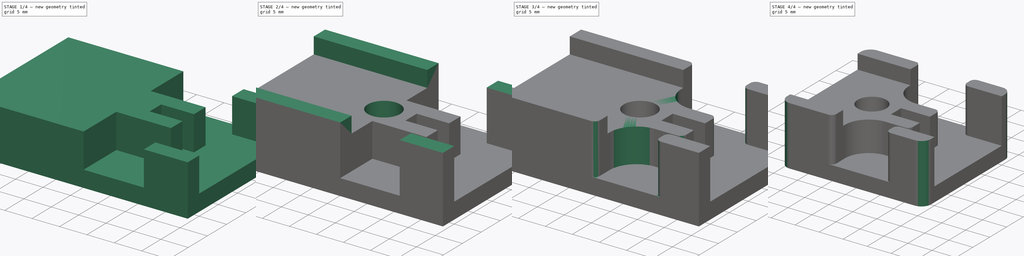
[diagram: build sequence overview — one tinted view per stage of 4, left to right]
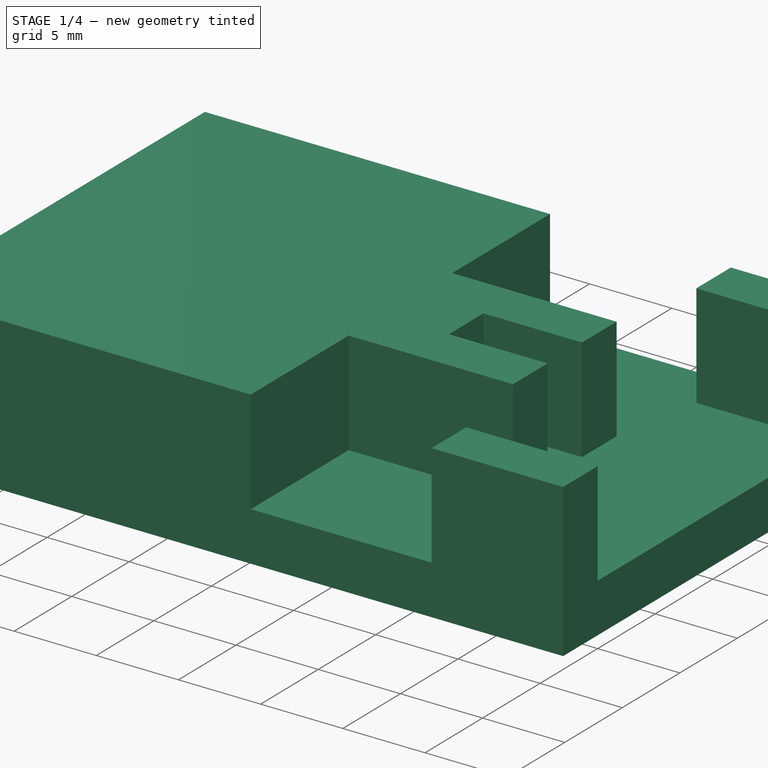
[diagram: stage 1 of 4 — iso view after this stage's code; geometry added in this stage tinted green]
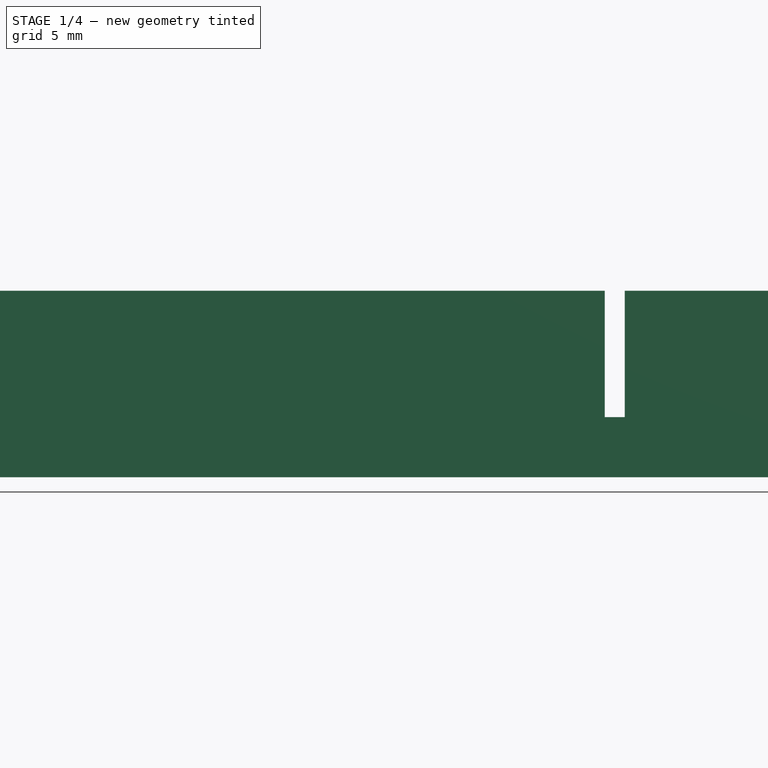
[diagram: stage 1 of 4 — front view after this stage's code; geometry added in this stage tinted green]
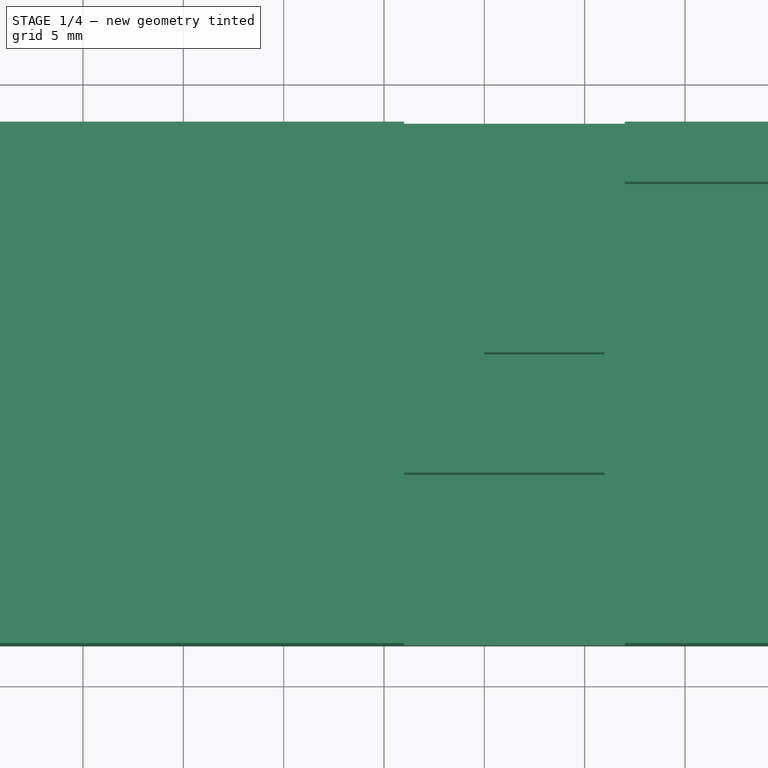
[diagram: stage 1 of 4 — top view after this stage's code; geometry added in this stage tinted green]
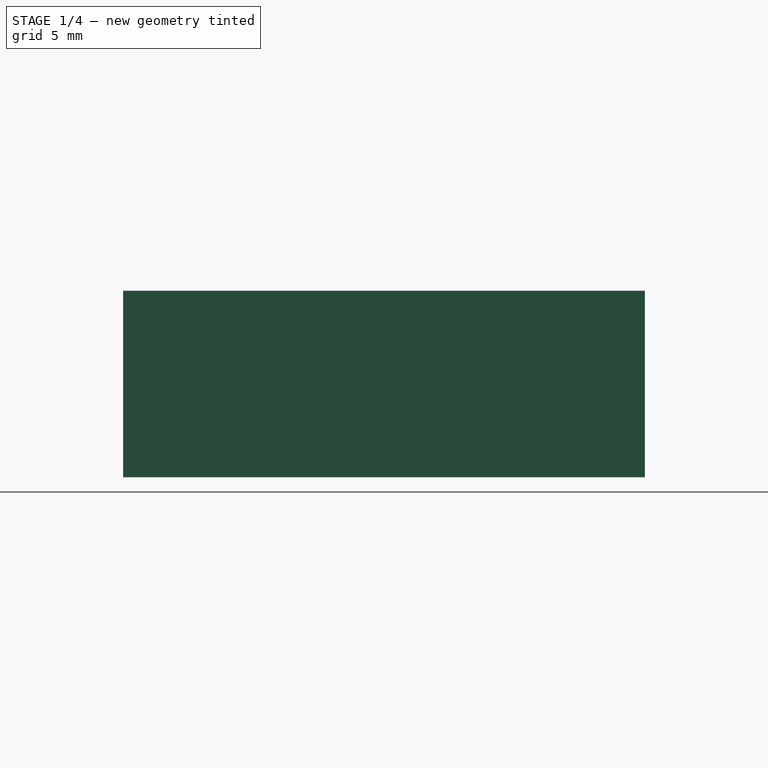
[diagram: stage 1 of 4 — right view after this stage's code; geometry added in this stage tinted green]
FCSTD DOCUMENT  (FreeCAD 1.0R39109 (Git))
Label: limit_switch_2020_mount_v2
License: All rights reserved
LicenseURL: https://en.wikipedia.org/wiki/All_rights_reserved
objects: Sketcher::SketchObject×4, PartDesign::Pad×3, PartDesign::Fillet×3, PartDesign::Pocket×2, PartDesign::Chamfer×1, PartDesign::Body×1
note: 36 computed .brp shape members not serialized (recipe doc carries the construction recipe); baked Part::Feature solids carry a one-line shape summary decoded from their .brp

FEATURE [Sketcher::SketchObject] Sketch
  ArcFitTolerance = 1e-06
  AttachmentSupport = -> [XY_Plane]
  FullyConstrained = true
  MakeInternals = false
  MapMode = 5
  sketch-geometry (11):
    g0: LineSegment [constr] StartX=-20 StartY=-10 StartZ=0 EndX=20 EndY=-10 EndZ=0
    g1: LineSegment StartX=20 StartY=-10 StartZ=0 EndX=20 EndY=10 EndZ=0
    g2: LineSegment [constr] StartX=20 StartY=10 StartZ=0 EndX=-20 EndY=10 EndZ=0
    g3: LineSegment StartX=-20 StartY=10 StartZ=0 EndX=-20 EndY=-10 EndZ=0
    g4: GeomPoint [constr] X=0 Y=0 Z=0
    g5: LineSegment StartX=-20 StartY=10 StartZ=0 EndX=-20 EndY=13 EndZ=0
    g6: LineSegment StartX=-20 StartY=13 StartZ=0 EndX=20 EndY=13 EndZ=0
    g7: LineSegment StartX=20 StartY=13 StartZ=0 EndX=20 EndY=10 EndZ=0
    g8: LineSegment StartX=-20 StartY=-10 StartZ=0 EndX=-20 EndY=-13 EndZ=0
    g9: LineSegment StartX=-20 StartY=-13 StartZ=0 EndX=20 EndY=-13 EndZ=0
    g10: LineSegment StartX=20 StartY=-13 StartZ=0 EndX=20 EndY=-10 EndZ=0
  constraints (28):
    c: Coincident(g0,g1)
    c: Coincident(g1,g2)
    c: Coincident(g2,g3)
    c: Coincident(g3,g0)
    c: Horizontal(g0)
    c: Horizontal(g2)
    c: Vertical(g1)
    c: Vertical(g3)
    c: Symmetric(g2,g0,g4)
    c: Distance(g1,g3) = 40
    c: Distance(g0,g2) = 20
    c: Coincident(g4,g-1)
    c: Coincident(g2,g5)
    c: Vertical(g5)
    c: Coincident(g5,g6)
    c: Horizontal(g6)
    c: Coincident(g6,g7)
    c: Coincident(g7,g1)
    c: Coincident(g0,g8)
    c: Vertical(g8)
    c: Coincident(g8,g9)
    c: Horizontal(g9)
    c: Coincident(g9,g10)
    c: Coincident(g10,g0)
    c: Vertical(g10)
    c: Vertical(g7)
    c: DistanceY(g5,g5) = 3
    c: Equal(g5,g8)
FEATURE [PartDesign::Pad] Pad
  Direction = (0,0,1)
  Length = 3
  Length2 = 10
  Profile = -> Sketch
  ReferenceAxis = -> Sketch [N_Axis]
  Refine = true
  Suppressed = false
  Type = 0
FEATURE [Sketcher::SketchObject] Sketch001
  ArcFitTolerance = 1e-06
  AttachmentSupport = -> [Pad]
  ExternalGeometry = -> [Pad]
  FullyConstrained = true
  MakeInternals = false
  MapMode = 5
  Placement = pos=(0,0,3) rot=(0,0,1;0rad)
  expr: Constraints[29] = (7 mm - 1 mm) / 2 mm
  sketch-geometry (27):
    g0: LineSegment StartX=20 StartY=13 StartZ=0 EndX=12 EndY=13 EndZ=0
    g1: LineSegment StartX=12 StartY=13 StartZ=0 EndX=12 EndY=10 EndZ=0
    g2: LineSegment StartX=12 StartY=10 StartZ=0 EndX=20 EndY=10 EndZ=0
    g3: LineSegment StartX=20 StartY=10 StartZ=0 EndX=20 EndY=13 EndZ=0
    g4: LineSegment StartX=20 StartY=-13 StartZ=0 EndX=12 EndY=-13 EndZ=0
    g5: LineSegment StartX=12 StartY=-13 StartZ=0 EndX=12 EndY=-10 EndZ=0
    g6: LineSegment StartX=12 StartY=-10 StartZ=0 EndX=20 EndY=-10 EndZ=0
    g7: LineSegment StartX=20 StartY=-10 StartZ=0 EndX=20 EndY=-13 EndZ=0
    g8: LineSegment [constr] StartX=11 StartY=13 StartZ=0 EndX=11 EndY=-13 EndZ=0
    g9: LineSegment StartX=11 StartY=1.5 StartZ=0 EndX=11 EndY=4.5 EndZ=0
    g10: LineSegment StartX=11 StartY=4.5 StartZ=0 EndX=1 EndY=4.5 EndZ=0
    g11: LineSegment [constr] StartX=1 StartY=4.5 StartZ=0 EndX=1 EndY=1.5 EndZ=0
    g12: GeomPoint [constr] X=11 Y=1.4e-15 Z=0
    g13: LineSegment [constr] StartX=11 StartY=-13 StartZ=0 EndX=11 EndY=13 EndZ=0
    g14: LineSegment StartX=11 StartY=-1.5 StartZ=0 EndX=11 EndY=-4.5 EndZ=0
    g15: LineSegment StartX=11 StartY=-4.5 StartZ=0 EndX=1 EndY=-4.5 EndZ=0
    g16: LineSegment [constr] StartX=1 StartY=-4.5 StartZ=0 EndX=1 EndY=-1.5 EndZ=0
    g17: LineSegment StartX=-20 StartY=13 StartZ=0 EndX=-20 EndY=-13 EndZ=0
    g18: LineSegment StartX=-20 StartY=-13 StartZ=0 EndX=1 EndY=-13 EndZ=0
    g19: LineSegment StartX=1 StartY=13 StartZ=0 EndX=-20 EndY=13 EndZ=0
    g20: LineSegment StartX=1 StartY=13 StartZ=0 EndX=1 EndY=4.5 EndZ=0
    g21: LineSegment StartX=1 StartY=-4.5 StartZ=0 EndX=1 EndY=-13 EndZ=0
    g22: LineSegment StartX=11 StartY=1.5 StartZ=0 EndX=5 EndY=1.5 EndZ=0
    g23: LineSegment StartX=5 StartY=1.5 StartZ=0 EndX=5 EndY=-1.5 EndZ=0
    g24: LineSegment StartX=5 StartY=-1.5 StartZ=0 EndX=11 EndY=-1.5 EndZ=0
    g25: LineSegment [constr] StartX=1 StartY=1.5 StartZ=0 EndX=5 EndY=1.5 EndZ=0
    g26: LineSegment [constr] StartX=1 StartY=-1.5 StartZ=0 EndX=5 EndY=-1.5 EndZ=0
  constraints (67):
    c: Coincident(g0,g1)
    c: Coincident(g1,g2)
    c: Coincident(g2,g3)
    c: Coincident(g3,g0)
    c: Horizontal(g0)
    c: Horizontal(g2)
    c: Vertical(g1)
    c: Vertical(g3)
    c: Distance(g1,g3) = 8
    c: Distance(g0,g2) = 3
    c: Coincident(g0,g-5)
    c: Symmetric(g0,g4,g-1)
    c: Symmetric(g0,g4,g-1)
    c: Symmetric(g1,g5,g-1)
    c: Symmetric(g1,g5,g-1)
    c: Symmetric(g2,g6,g-1)
    c: Symmetric(g2,g6,g-1)
    c: Symmetric(g3,g7,g-1)
    c: Symmetric(g3,g7,g-1)
    c: PointOnObject(g8,g-3)
    c: PointOnObject(g8,g-4)
    c: Vertical(g8)
    c: Distance(g-5,g8) = 9
    c: Coincident(g9,g10)
    c: Coincident(g10,g11)
    c: Vertical(g9)
    c: Vertical(g11)
    c: Horizontal(g10)
    c: PointOnObject(g9,g8)
    c: DistanceY(g11,g11) = 3
    c: Distance(g10,g10) = 10
    c: Symmetric(g8,g8,g12)
    c: DistanceY(g12,g9) = 1.5
    c: Symmetric(g8,g13,g-1)
    c: Symmetric(g8,g13,g-1)
    c: Symmetric(g9,g14,g-1)
    c: Symmetric(g9,g14,g-1)
    c: Symmetric(g10,g15,g-1)
    c: Symmetric(g10,g15,g-1)
    c: Symmetric(g11,g16,g-1)
    c: Symmetric(g11,g16,g-1)
    c: Coincident(g17,g18)
    c: Coincident(g19,g17)
    c: Vertical(g17)
    c: Horizontal(g18)
    c: Horizontal(g19)
    c: Coincident(g17,g-6)
    c: PointOnObject(g18,g-4)
    c: Coincident(g20,g19)
    c: Coincident(g20,g10)
    c: Coincident(g21,g15)
    c: Coincident(g21,g18)
    c: Vertical(g20)
    c: Vertical(g21)
    c: Coincident(g9,g22)
    c: Horizontal(g22)
    c: Coincident(g22,g23)
    c: Vertical(g23)
    c: Coincident(g23,g24)
    c: Coincident(g24,g14)
    c: Horizontal(g24)
    c: Coincident(g25,g11)
    c: Coincident(g25,g22)
    c: Coincident(g26,g16)
    c: Coincident(g26,g23)
    c: Horizontal(g25)
    c: Distance(g24,g24) = 6
FEATURE [PartDesign::Pad] Pad001
  BaseFeature = -> Pad
  Direction = (0,0,1)
  Length = 6.3
  Length2 = 10
  Profile = -> Sketch001
  ReferenceAxis = -> Sketch001 [N_Axis]
  Refine = true
  Suppressed = false
  Type = 0
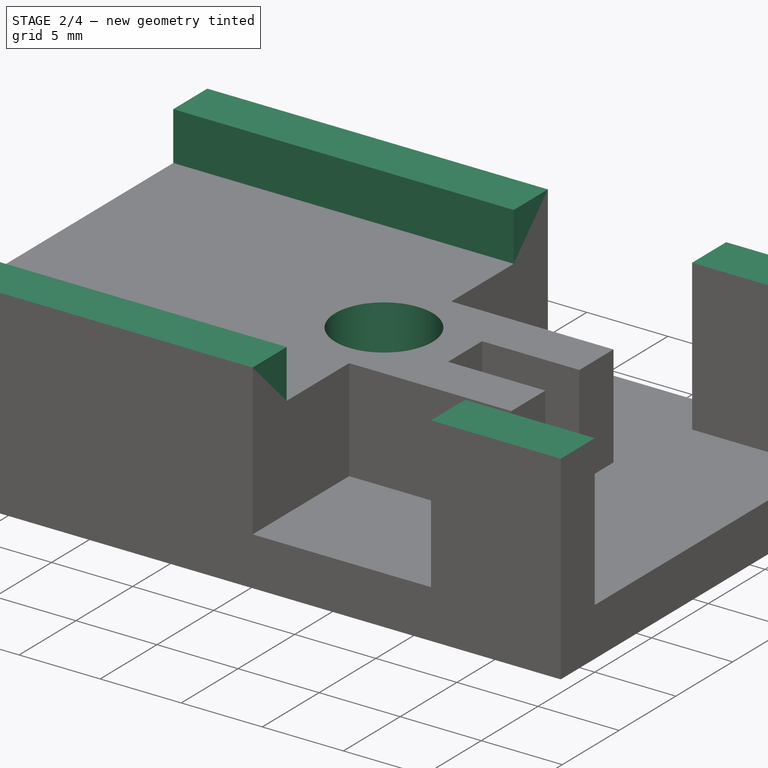
[diagram: stage 2 of 4 — iso view after this stage's code; geometry added in this stage tinted green]
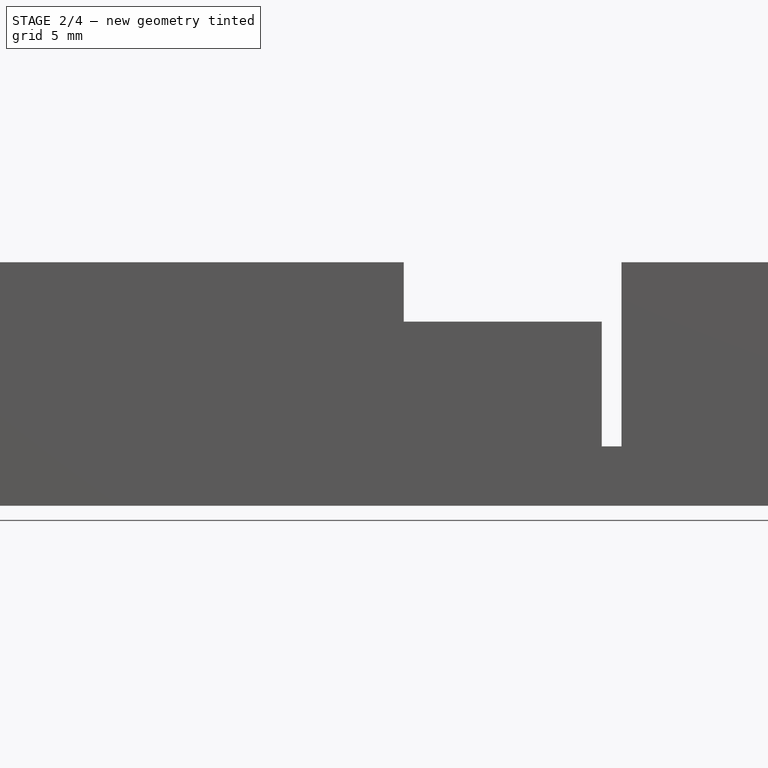
[diagram: stage 2 of 4 — front view after this stage's code; geometry added in this stage tinted green]
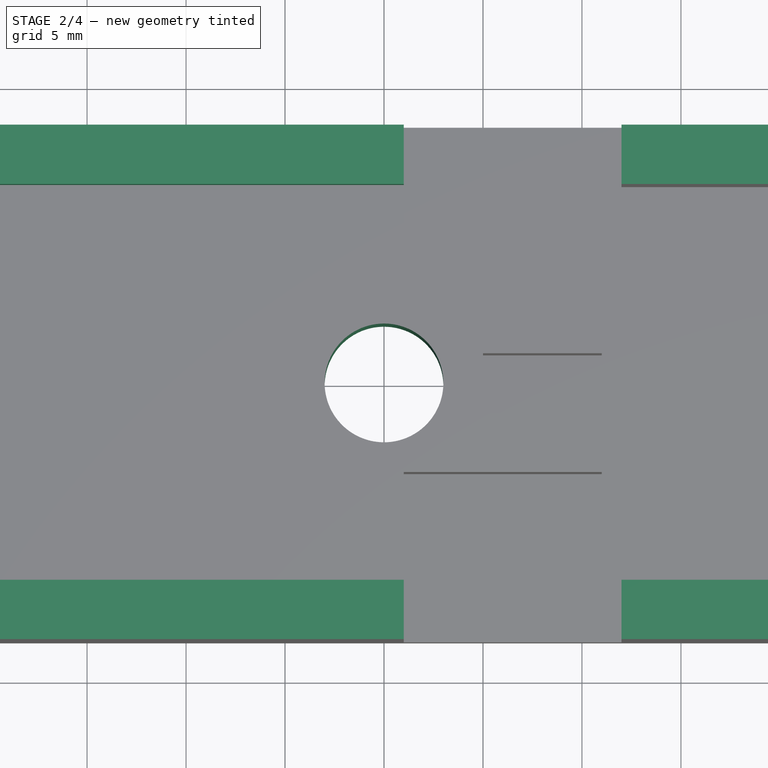
[diagram: stage 2 of 4 — top view after this stage's code; geometry added in this stage tinted green]
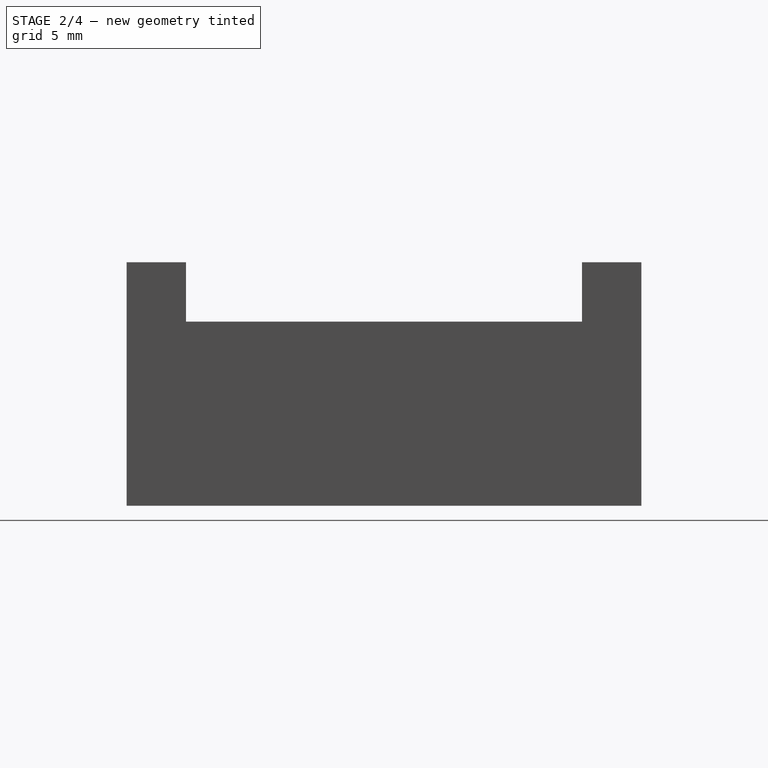
[diagram: stage 2 of 4 — right view after this stage's code; geometry added in this stage tinted green]
FEATURE [Sketcher::SketchObject] Sketch002
  ArcFitTolerance = 1e-06
  AttachmentSupport = -> [Pad001]
  ExternalGeometry = -> [Pad001]
  FullyConstrained = true
  MakeInternals = false
  MapMode = 5
  Placement = pos=(0,0,9.3) rot=(0,0,1;0rad)
  sketch-geometry (16):
    g0: LineSegment StartX=20 StartY=10 StartZ=0 EndX=20 EndY=13 EndZ=0
    g1: LineSegment StartX=20 StartY=13 StartZ=0 EndX=12 EndY=13 EndZ=0
    g2: LineSegment StartX=12 StartY=13 StartZ=0 EndX=12 EndY=10 EndZ=0
    g3: LineSegment StartX=12 StartY=10 StartZ=0 EndX=20 EndY=10 EndZ=0
    g4: LineSegment StartX=-20 StartY=13 StartZ=0 EndX=-20 EndY=10 EndZ=0
    g5: LineSegment StartX=-20 StartY=10 StartZ=0 EndX=1 EndY=10 EndZ=0
    g6: LineSegment StartX=1 StartY=10 StartZ=0 EndX=1 EndY=13 EndZ=0
    g7: LineSegment StartX=1 StartY=13 StartZ=0 EndX=-20 EndY=13 EndZ=0
    g8: LineSegment StartX=20 StartY=-10 StartZ=0 EndX=20 EndY=-13 EndZ=0
    g9: LineSegment StartX=20 StartY=-13 StartZ=0 EndX=12 EndY=-13 EndZ=0
    g10: LineSegment StartX=12 StartY=-13 StartZ=0 EndX=12 EndY=-10 EndZ=0
    g11: LineSegment StartX=12 StartY=-10 StartZ=0 EndX=20 EndY=-10 EndZ=0
    g12: LineSegment StartX=-20 StartY=-13 StartZ=0 EndX=-20 EndY=-10 EndZ=0
    g13: LineSegment StartX=-20 StartY=-10 StartZ=0 EndX=1 EndY=-10 EndZ=0
    g14: LineSegment StartX=1 StartY=-10 StartZ=0 EndX=1 EndY=-13 EndZ=0
    g15: LineSegment StartX=1 StartY=-13 StartZ=0 EndX=-20 EndY=-13 EndZ=0
  constraints (37):
    c: Coincident(g0,g1)
    c: Coincident(g1,g2)
    c: Coincident(g2,g3)
    c: Coincident(g3,g0)
    c: Vertical(g0)
    c: Vertical(g2)
    c: Horizontal(g1)
    c: Horizontal(g3)
    c: Coincident(g0,g-6)
    c: Coincident(g1,g-4)
    c: Coincident(g4,g5)
    c: Coincident(g5,g6)
    c: Coincident(g6,g7)
    c: Coincident(g7,g4)
    c: Vertical(g4)
    c: Vertical(g6)
    c: Horizontal(g5)
    c: Horizontal(g7)
    c: Coincident(g4,g-5)
    c: PointOnObject(g5,g-7)
    c: Equal(g6,g2)
    c: Symmetric(g0,g8,g-1)
    c: Symmetric(g0,g8,g-1)
    c: Symmetric(g1,g9,g-1)
    c: Symmetric(g1,g9,g-1)
    c: Symmetric(g2,g10,g-1)
    c: Symmetric(g2,g10,g-1)
    c: Symmetric(g3,g11,g-1)
    c: Symmetric(g3,g11,g-1)
    c: Symmetric(g4,g12,g-1)
    c: Symmetric(g4,g12,g-1)
    c: Symmetric(g5,g13,g-1)
    c: Symmetric(g5,g13,g-1)
    c: Symmetric(g6,g14,g-1)
    c: Symmetric(g6,g14,g-1)
    c: Symmetric(g7,g15,g-1)
    c: Symmetric(g7,g15,g-1)
FEATURE [PartDesign::Pad] Pad002
  BaseFeature = -> Pad001
  Direction = (0,0,1)
  Length = 3
  Length2 = 10
  Profile = -> Sketch002
  ReferenceAxis = -> Sketch002 [N_Axis]
  Refine = true
  Suppressed = false
  Type = 0
FEATURE [Sketcher::SketchObject] Sketch003
  ArcFitTolerance = 1e-06
  AttachmentSupport = -> [Pad002]
  ExternalGeometry = -> [Pad002]
  FullyConstrained = true
  MakeInternals = false
  MapMode = 5
  Placement = pos=(0,0,0) rot=(1,0,0;3.14159rad)
  sketch-geometry (1):
    g0: Circle CenterX=-9e-16 CenterY=0 CenterZ=0 NormalX=0 NormalY=0 NormalZ=1 AngleXU=0 Radius=3
  constraints (3):
    c: PointOnObject(g0,g-1)
    c: Diameter(g0) = 6
    c: Distance(g0,g-3) = 20
FEATURE [PartDesign::Pocket] Pocket
  BaseFeature = -> Pad002
  Direction = (0,0,1)
  Length = 20
  Length2 = 5
  Profile = -> Sketch003
  ReferenceAxis = -> Sketch003 [N_Axis]
  Refine = true
  Suppressed = false
  Type = 0
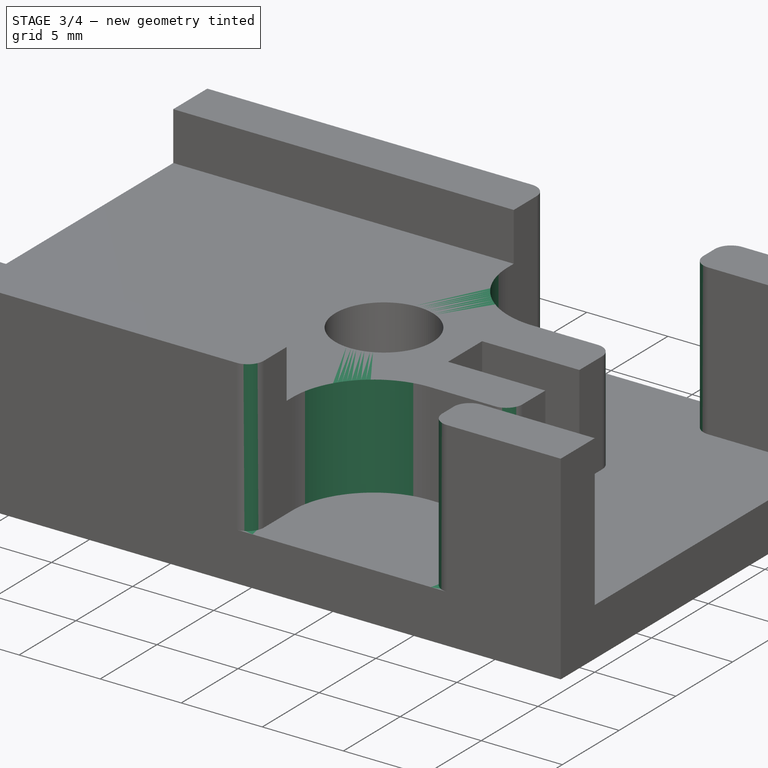
[diagram: stage 3 of 4 — iso view after this stage's code; geometry added in this stage tinted green]
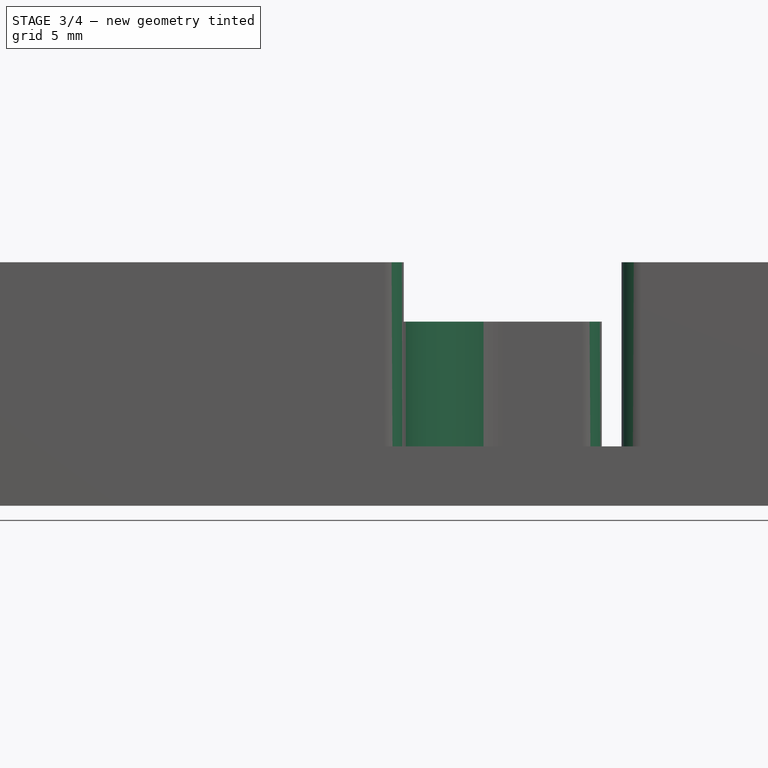
[diagram: stage 3 of 4 — front view after this stage's code; geometry added in this stage tinted green]
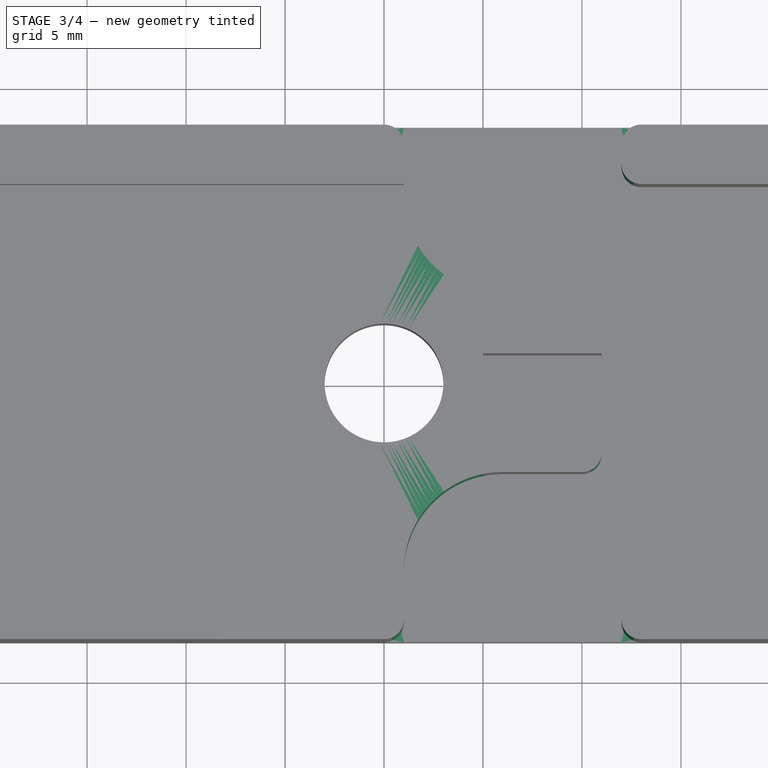
[diagram: stage 3 of 4 — top view after this stage's code; geometry added in this stage tinted green]
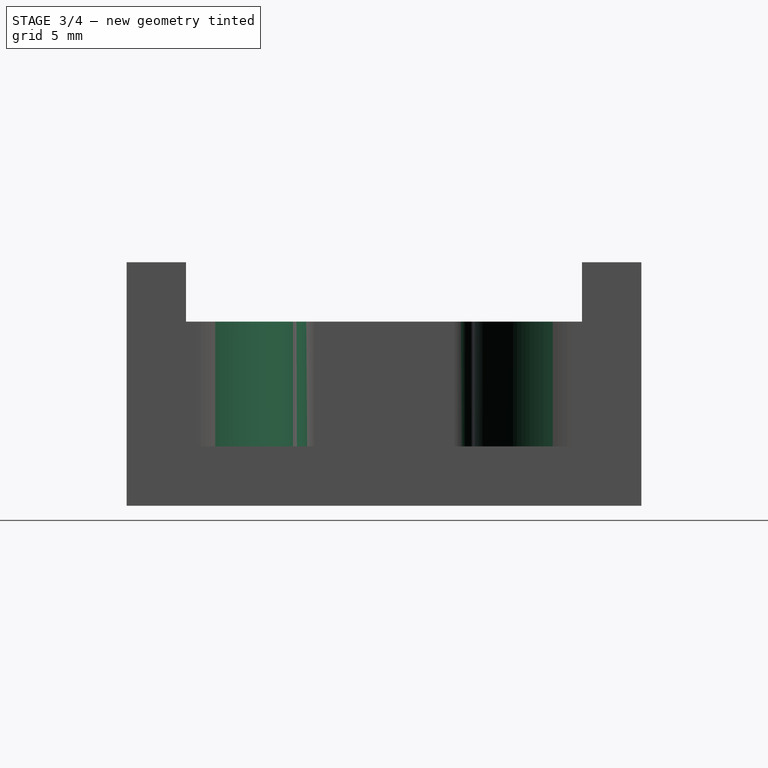
[diagram: stage 3 of 4 — right view after this stage's code; geometry added in this stage tinted green]
FEATURE [PartDesign::Chamfer] Chamfer
  Angle = 45
  Base = -> Pocket [Edge5]
  ChamferType = 1
  FlipDirection = false
  Refine = true
  Size = 4
  Size2 = 4
  SupportTransform = false
  Suppressed = false
  UseAllEdges = false
FEATURE [PartDesign::Fillet] Fillet001
  Base = -> Chamfer [Edge51,Edge71]
  BaseFeature = -> Chamfer
  Radius = 5
  Refine = true
  SupportTransform = false
  Suppressed = false
  UseAllEdges = false
FEATURE [PartDesign::Fillet] Fillet002
  Base = -> Fillet001 [Edge18,Edge81,Edge43,Edge75,Edge26,Edge62,Edge48,Edge71]
  BaseFeature = -> Fillet001
  Radius = 1
  Refine = true
  SupportTransform = false
  Suppressed = false
  UseAllEdges = false
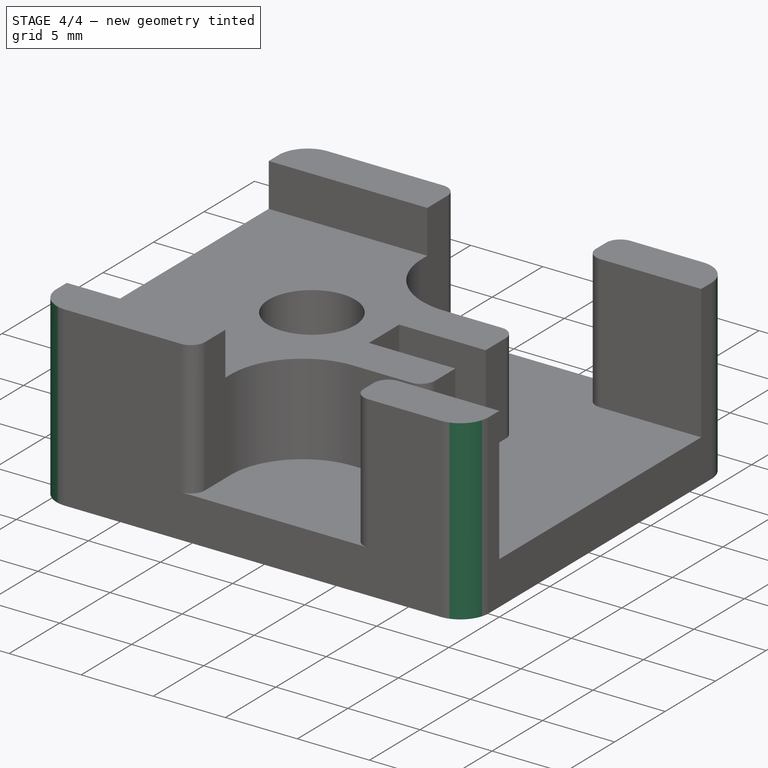
[diagram: stage 4 of 4 — iso view after this stage's code; geometry added in this stage tinted green]
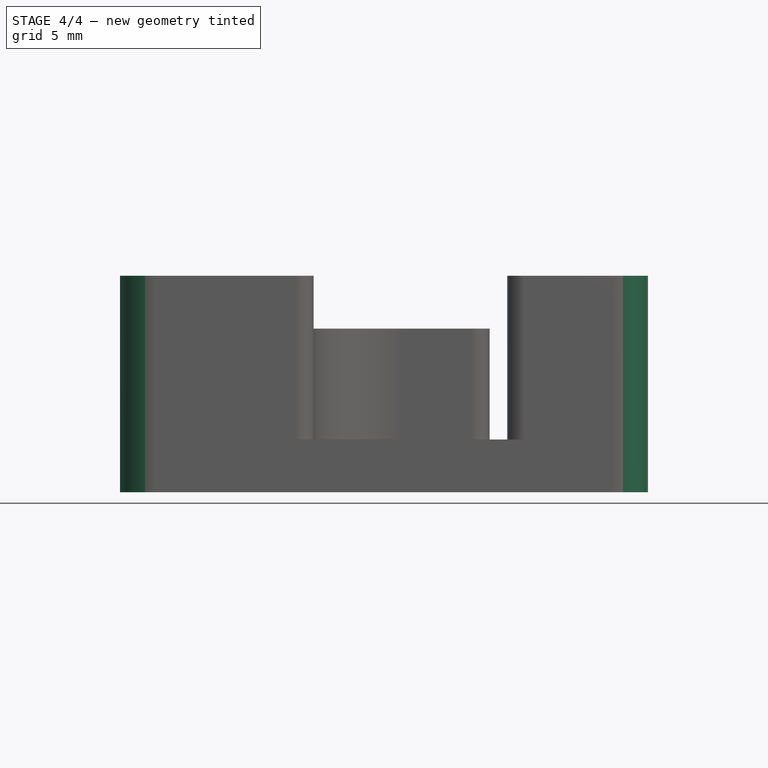
[diagram: stage 4 of 4 — front view after this stage's code; geometry added in this stage tinted green]
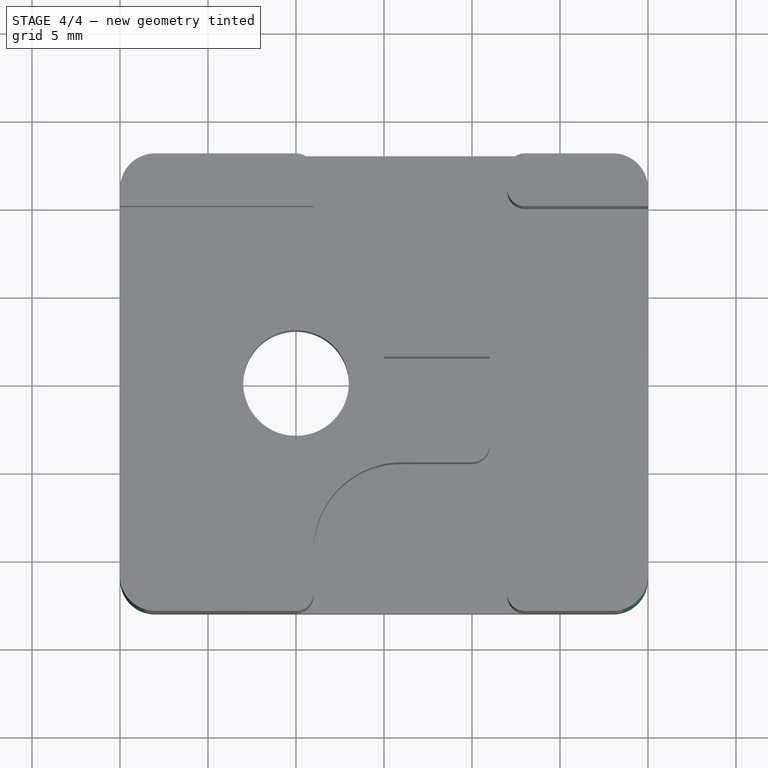
[diagram: stage 4 of 4 — top view after this stage's code; geometry added in this stage tinted green]
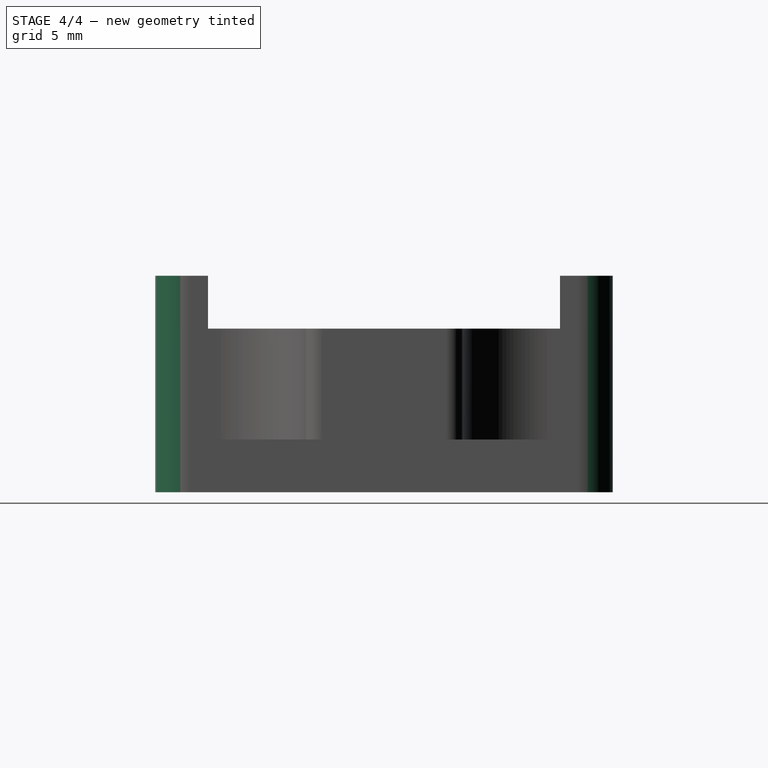
[diagram: stage 4 of 4 — right view after this stage's code; geometry added in this stage tinted green]
FEATURE [PartDesign::Pocket] Pocket001
  BaseFeature = -> Fillet002
  Direction = (1,0,0)
  Length = 10
  Length2 = 5
  Profile = -> Fillet002 [Face10]
  Refine = true
  Suppressed = false
  Type = 0
FEATURE [PartDesign::Fillet] Fillet
  Base = -> Pocket001 [Edge48,Edge89,Edge85,Edge44]
  BaseFeature = -> Pocket001
  Radius = 2
  Refine = true
  SupportTransform = false
  Suppressed = false
  UseAllEdges = false
FEATURE [PartDesign::Body] Body
  AllowCompound = false
  Group = -> [Sketch,Pad,Sketch001,Pad001,Sketch002,Pad002,Sketch003,Pocket,Chamfer,Fillet001,Fillet002,Pocket001,Fillet]
  Origin = -> Origin
  Tip = -> Fillet
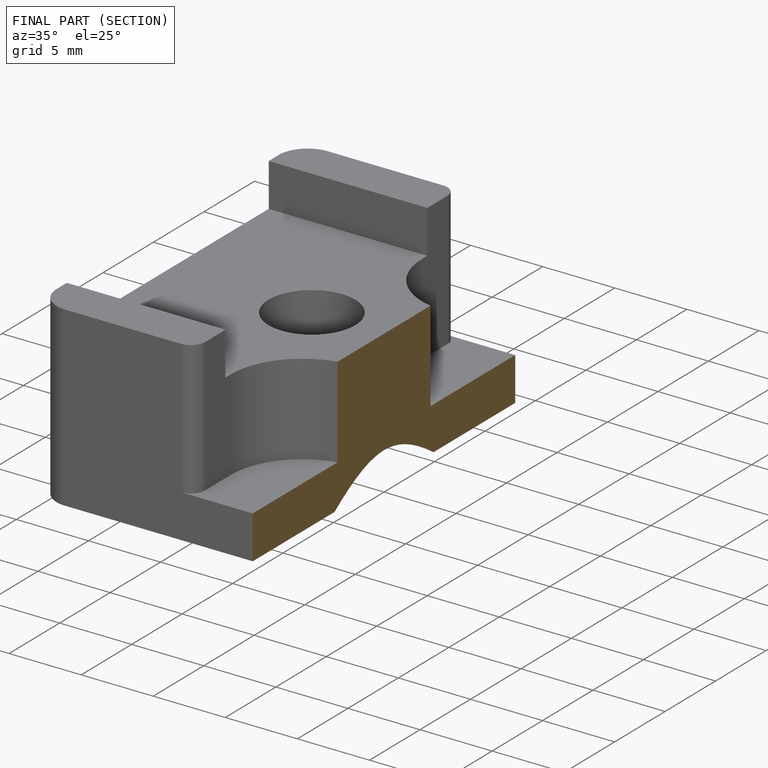
[diagram: finished part — half-section view (interior)]
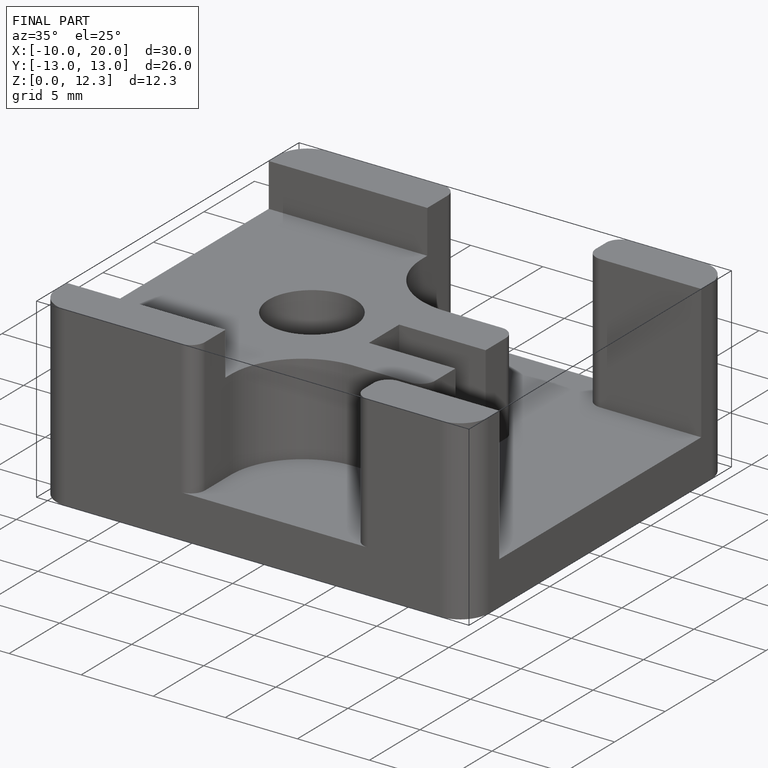
[diagram: finished part — iso view with bounding-box wireframe]
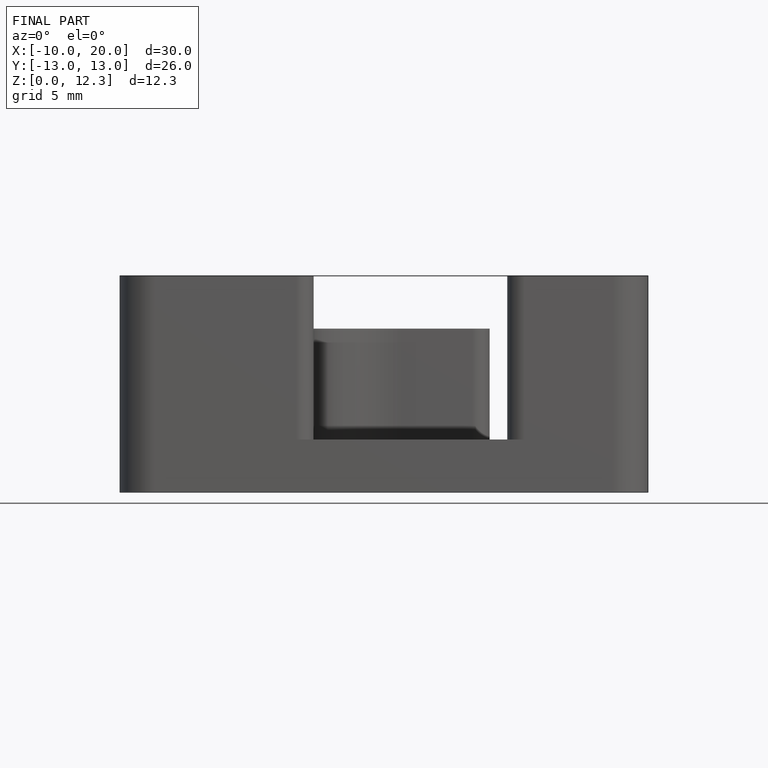
[diagram: finished part — front view with bounding-box wireframe]
